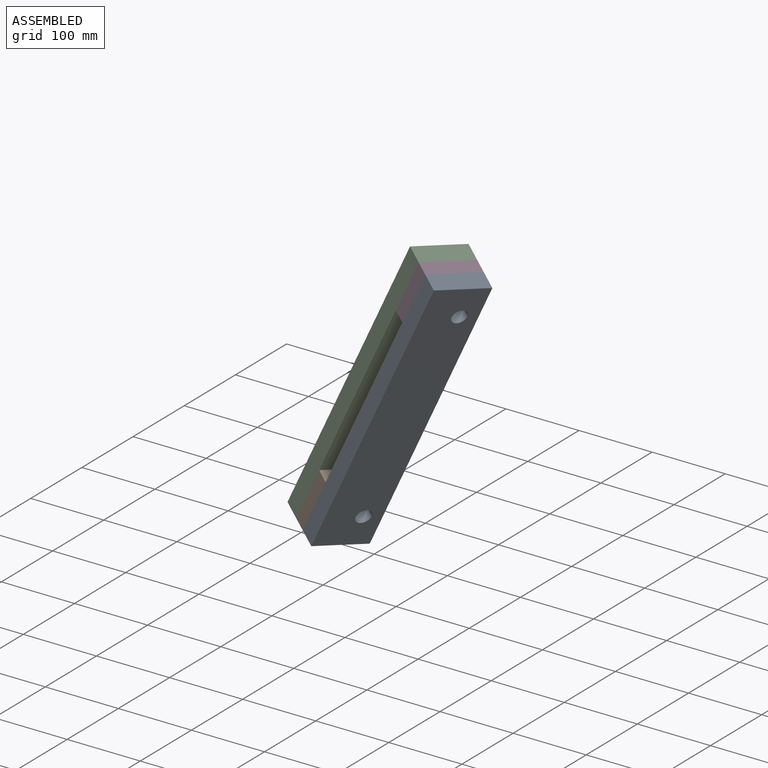
[diagram: assembled view]
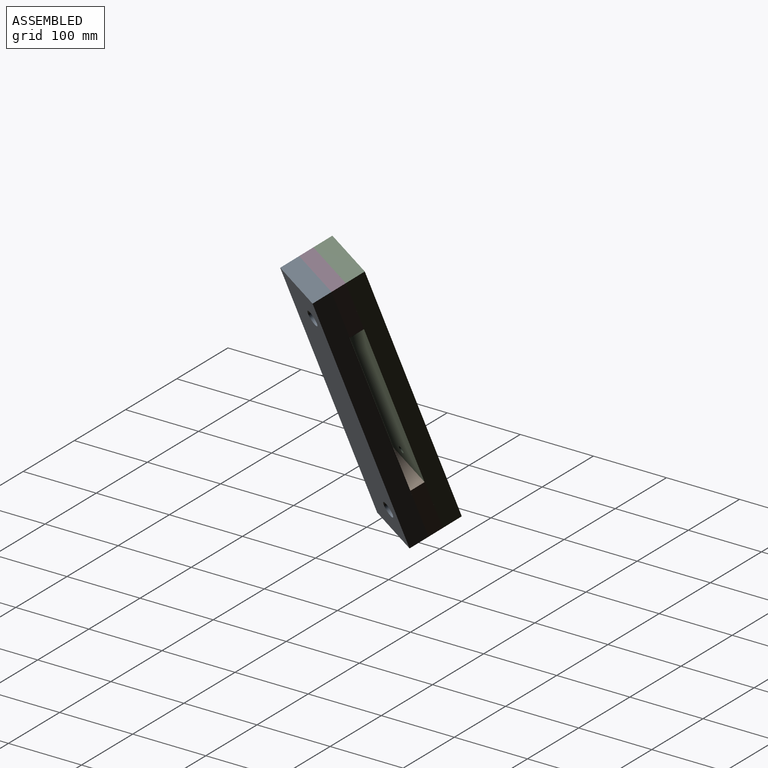
[diagram: assembled view, second angle]
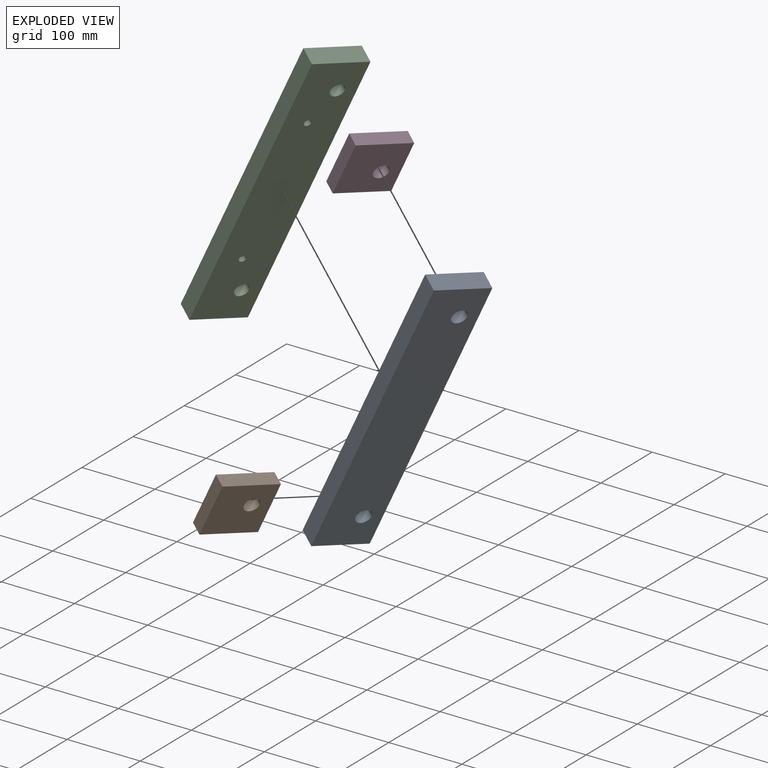
[diagram: exploded view]
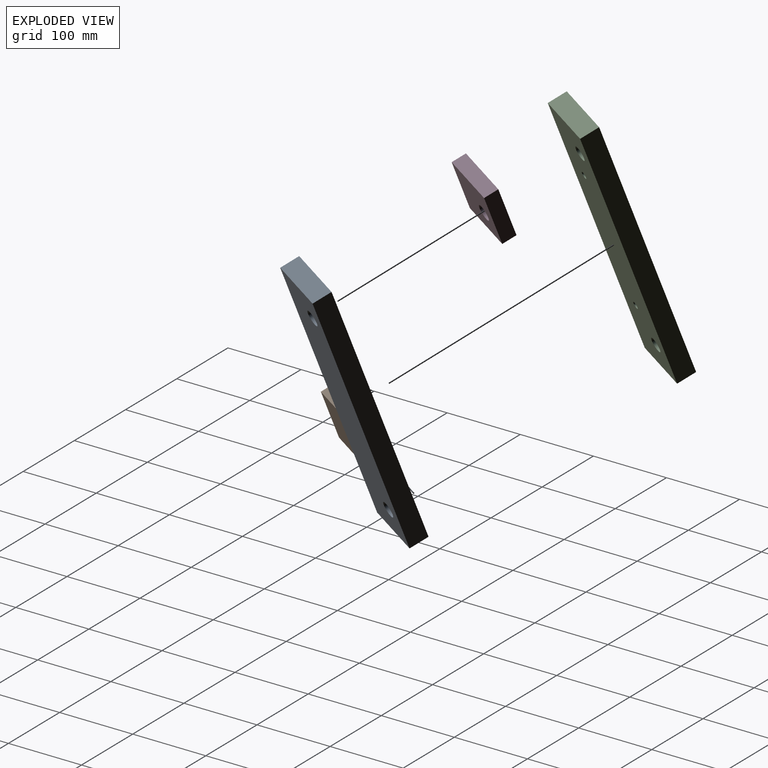
[diagram: exploded view, second angle]
ASSEMBLY  parts=4 mates=3
PART A: 8 faces, bbox 406.4x76.2x25.4 mm
  f0: plane 406.4x25.4mm, normal (0,-1,0), area 10322.6mm2, adj f1,f3,f4,f5
  f1: plane 76.2x25.4mm, normal (1,0,0), area 1935.5mm2, adj f0,f2,f4,f5
  f2: plane 406.4x25.4mm, normal (0,1,0), area 10322.6mm2, adj f1,f3,f4,f5
  f3: plane 76.2x25.4mm, normal (-1,0,0), area 1935.5mm2, adj f0,f2,f4,f5
  f4: plane 406.4x76.2mm, normal (0,0,1), area 30299.5mm2, adj f0,f1,f2,f3,f6,f7
  f5: plane 406.4x76.2mm, normal (0,0,-1), area 30299.5mm2, adj f0,f1,f2,f3,f6,f7
  f6: cylinder r=10.31mm len=25.4mm, axis (0,0,1), area 1645.8mm2, adj f4,f5
  f7: cylinder r=10.31mm len=25.4mm, axis (0,0,1), area 1645.8mm2, adj f4,f5
PART B: 7 faces, bbox 76.2x76.2x19.1 mm
  f0: plane 76.2x19.05mm, normal (0,-1,0), area 1451.6mm2, adj f1,f3,f4,f5
  f1: plane 76.2x19.05mm, normal (1,0,0), area 1451.6mm2, adj f0,f2,f4,f5
  f2: plane 76.2x19.05mm, normal (0,1,0), area 1451.6mm2, adj f1,f3,f4,f5
  f3: plane 76.2x19.05mm, normal (-1,0,0), area 1451.6mm2, adj f0,f2,f4,f5
  f4: plane 76.2x76.2mm, normal (0,0,1), area 5472.3mm2, adj f0,f1,f2,f3,f6
  f5: plane 76.2x76.2mm, normal (0,0,-1), area 5472.3mm2, adj f0,f1,f2,f3,f6
  f6: cylinder r=10.31mm len=20.62mm, axis (0,0,1), area 1234.3mm2, adj f4,f5
PART C: 10 faces, bbox 406.4x76.2x25.4 mm
  f0: plane 406.4x25.4mm, normal (0,-1,0), area 10322.6mm2, adj f1,f3,f4,f5
  f1: plane 76.2x25.4mm, normal (1,0,0), area 1935.5mm2, adj f0,f2,f4,f5
  f2: plane 406.4x25.4mm, normal (0,1,0), area 10322.6mm2, adj f1,f3,f4,f5
  f3: plane 76.2x25.4mm, normal (-1,0,0), area 1935.5mm2, adj f0,f2,f4,f5
  f4: plane 406.4x76.2mm, normal (0,0,1), area 30260.4mm2, adj f0,f1,f2,f3,f6,f7,f8,f9
  f5: plane 406.4x76.2mm, normal (0,0,-1), area 30260.4mm2, adj f0,f1,f2,f3,f6,f7,f8,f9
  f6: cylinder r=4.67mm len=25.4mm, axis (0,0,1), area 745.9mm2, adj f4,f5
  f7: cylinder r=4.67mm len=25.4mm, axis (0,0,1), area 745.9mm2, adj f4,f5
  f8: cylinder r=9.53mm len=25.4mm, axis (0,0,1), area 1520.1mm2, adj f4,f5
  f9: cylinder r=9.53mm len=25.4mm, axis (0,0,1), area 1520.1mm2, adj f4,f5
PART D: same geometry as B
PLACE A rot(axis=(-0.52,0.2,0.83),164deg) t=(194.38,176.3,-167.95)mm
PLACE B rot(axis=(0.84,-0.14,0.53),157.3deg) t=(88.1,201.23,-299.54)mm
PLACE C rot(axis=(-0.52,0.2,0.83),164deg) t=(159.13,197.07,-150.57)mm
PLACE D rot(axis=(-0.52,0.2,0.83),164deg) t=(245.28,184,-9.04)mm
MATE fastened B.f0 <-> A.f0  axis (-0.43,-0.88,0.18) through (103.25,226.96,-348.27)mm
MATE fastened C.f5 <-> D.f4  axis (-0.79,0.47,0.39) through (263,225.61,25.89)mm
MATE fastened D.f5 <-> A.f4  axis (0.79,-0.47,-0.39) through (278.11,216.71,18.44)mm
